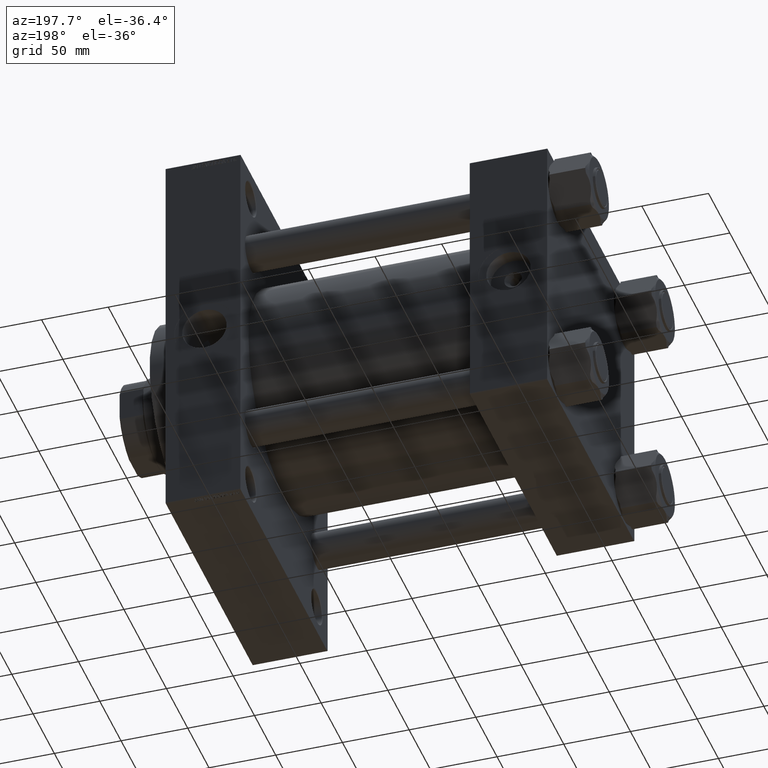
[diagram: clean part render]
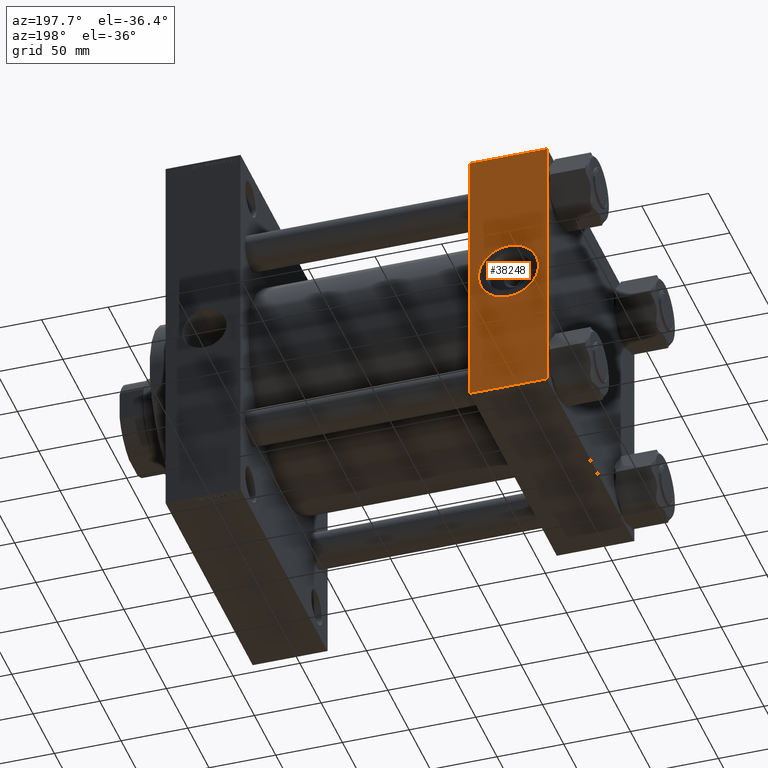
[diagram: same view with one face highlighted and labeled with its STEP entity id]
A machine part, auxiliary view. The second image highlights one B-rep face of the part: STEP entity #38248.
In plain terms, the highlighted planar face has unit normal (0, 1, 0).
Its self-contained STEP definition (entity closure, byte-faithful):
#2293 = ORIENTED_EDGE ( 'NONE', *, *, #13182, .F. ) ;
#3008 = ORIENTED_EDGE ( 'NONE', *, *, #3955, .T. ) ;
#3955 = EDGE_CURVE ( 'NONE', #44798, #19560, #9335, .T. ) ;
#5272 = CARTESIAN_POINT ( 'NONE',  ( 58.00000000000000000, 102.5000000000000284, -101.9999999999999716 ) ) ;
#6436 = CARTESIAN_POINT ( 'NONE',  ( 58.00000000000000000, 102.5000000000000284, 102.0000000000000142 ) ) ;
#7130 = FACE_OUTER_BOUND ( 'NONE', #29574, .T. ) ;
#7894 = DIRECTION ( 'NONE',  ( 0.000000000000000000, 0.000000000000000000, -1.000000000000000000 ) ) ;
#7970 = ORIENTED_EDGE ( 'NONE', *, *, #29582, .T. ) ;
#8808 = CARTESIAN_POINT ( 'NONE',  ( 0.000000000000000000, 102.5000000000000284, 102.0000000000000142 ) ) ;
#9062 = EDGE_CURVE ( 'NONE', #28177, #10013, #41442, .T. ) ;
#9335 = LINE ( 'NONE', #6436, #26683 ) ;
#9360 = VECTOR ( 'NONE', #7894, 1000.000000000000000 ) ;
#10013 = VERTEX_POINT ( 'NONE', #31491 ) ;
#10743 = FACE_BOUND ( 'NONE', #47450, .T. ) ;
#12320 = AXIS2_PLACEMENT_3D ( 'NONE', #17630, #25101, #28237 ) ;
#13182 = EDGE_CURVE ( 'NONE', #44575, #23869, #20695, .T. ) ;
#13240 = AXIS2_PLACEMENT_3D ( 'NONE', #29329, #47408, #36783 ) ;
#15367 = LINE ( 'NONE', #33454, #9360 ) ;
#15713 = DIRECTION ( 'NONE',  ( 0.000000000000000000, 0.000000000000000000, -1.000000000000000000 ) ) ;
#17300 = DIRECTION ( 'NONE',  ( 1.000000000000000000, 0.000000000000000000, 0.000000000000000000 ) ) ;
#17553 = CARTESIAN_POINT ( 'NONE',  ( 29.00000000000000000, 102.5000000000000284, 22.50000000000000711 ) ) ;
#17630 = CARTESIAN_POINT ( 'NONE',  ( 29.00000000000000000, 102.5000000000000284, 0.000000000000000000 ) ) ;
#17652 = VECTOR ( 'NONE', #27002, 1000.000000000000000 ) ;
#18565 = CARTESIAN_POINT ( 'NONE',  ( 29.00000000000000000, 102.5000000000000284, 0.000000000000000000 ) ) ;
#19560 = VERTEX_POINT ( 'NONE', #43594 ) ;
#20695 = CIRCLE ( 'NONE', #12320, 22.50000000000000711 ) ;
#21388 = CARTESIAN_POINT ( 'NONE',  ( 29.00000000000000355, 102.5000000000000284, -22.50000000000000711 ) ) ;
#21846 = PLANE ( 'NONE',  #13240 ) ;
#22416 = DIRECTION ( 'NONE',  ( 0.000000000000000000, 0.000000000000000000, 1.000000000000000000 ) ) ;
#22974 = VECTOR ( 'NONE', #15713, 1000.000000000000000 ) ;
#23869 = VERTEX_POINT ( 'NONE', #21388 ) ;
#25101 = DIRECTION ( 'NONE',  ( 0.000000000000000000, 1.000000000000000000, 0.000000000000000000 ) ) ;
#25338 = DIRECTION ( 'NONE',  ( 0.000000000000000000, 1.000000000000000000, 0.000000000000000000 ) ) ;
#26683 = VECTOR ( 'NONE', #17300, 1000.000000000000000 ) ;
#26815 = LINE ( 'NONE', #41988, #22974 ) ;
#27002 = DIRECTION ( 'NONE',  ( -1.000000000000000000, 0.000000000000000000, 0.000000000000000000 ) ) ;
#27598 = CIRCLE ( 'NONE', #46844, 22.50000000000000711 ) ;
#28177 = VERTEX_POINT ( 'NONE', #36002 ) ;
#28237 = DIRECTION ( 'NONE',  ( 0.000000000000000000, 0.000000000000000000, 1.000000000000000000 ) ) ;
#29329 = CARTESIAN_POINT ( 'NONE',  ( 58.00000000000000000, 102.5000000000000284, 102.5000000000000284 ) ) ;
#29574 = EDGE_LOOP ( 'NONE', ( #7970, #46227, #46428, #3008 ) ) ;
#29582 = EDGE_CURVE ( 'NONE', #19560, #28177, #26815, .T. ) ;
#29807 = EDGE_CURVE ( 'NONE', #23869, #44575, #27598, .T. ) ;
#31491 = CARTESIAN_POINT ( 'NONE',  ( 0.000000000000000000, 102.5000000000000284, -101.9999999999999147 ) ) ;
#33454 = CARTESIAN_POINT ( 'NONE',  ( 0.000000000000000000, 102.5000000000000284, 102.5000000000000284 ) ) ;
#36002 = CARTESIAN_POINT ( 'NONE',  ( 58.00000000000000000, 102.5000000000000284, -101.9999999999999147 ) ) ;
#36783 = DIRECTION ( 'NONE',  ( 0.000000000000000000, -0.000000000000000000, 1.000000000000000000 ) ) ;
#38248 = ADVANCED_FACE ( 'NONE', ( #10743, #7130 ), #21846, .T. ) ;
#41442 = LINE ( 'NONE', #5272, #17652 ) ;
#41988 = CARTESIAN_POINT ( 'NONE',  ( 58.00000000000000000, 102.5000000000000284, 102.5000000000000284 ) ) ;
#43594 = CARTESIAN_POINT ( 'NONE',  ( 58.00000000000000000, 102.5000000000000284, 102.0000000000000142 ) ) ;
#44575 = VERTEX_POINT ( 'NONE', #17553 ) ;
#44798 = VERTEX_POINT ( 'NONE', #8808 ) ;
#44891 = ORIENTED_EDGE ( 'NONE', *, *, #29807, .F. ) ;
#46227 = ORIENTED_EDGE ( 'NONE', *, *, #9062, .T. ) ;
#46428 = ORIENTED_EDGE ( 'NONE', *, *, #47602, .F. ) ;
#46844 = AXIS2_PLACEMENT_3D ( 'NONE', #18565, #25338, #22416 ) ;
#47408 = DIRECTION ( 'NONE',  ( -0.000000000000000000, 1.000000000000000000, 0.000000000000000000 ) ) ;
#47450 = EDGE_LOOP ( 'NONE', ( #2293, #44891 ) ) ;
#47602 = EDGE_CURVE ( 'NONE', #44798, #10013, #15367, .T. ) ;